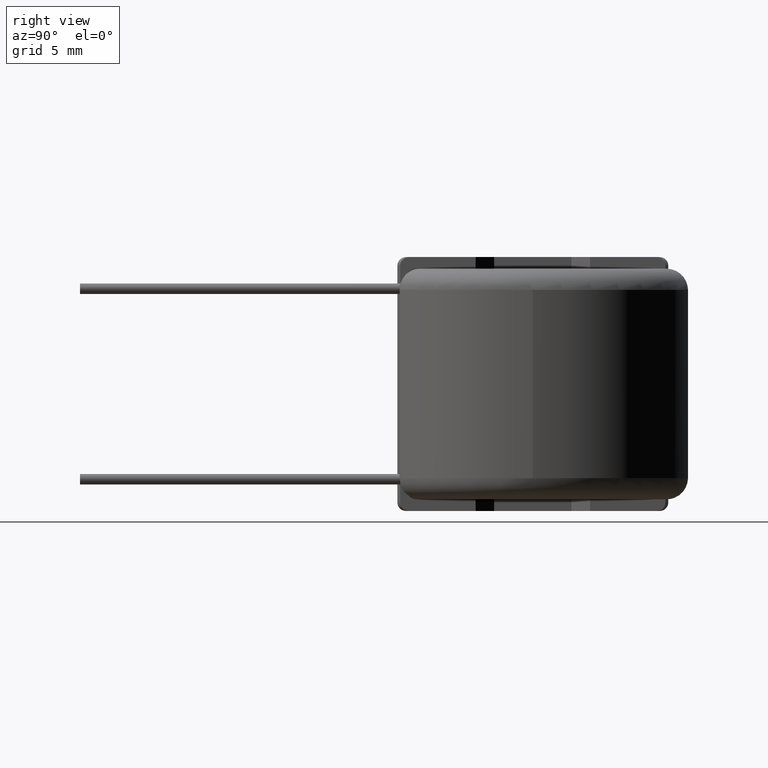
[diagram: clean part render]
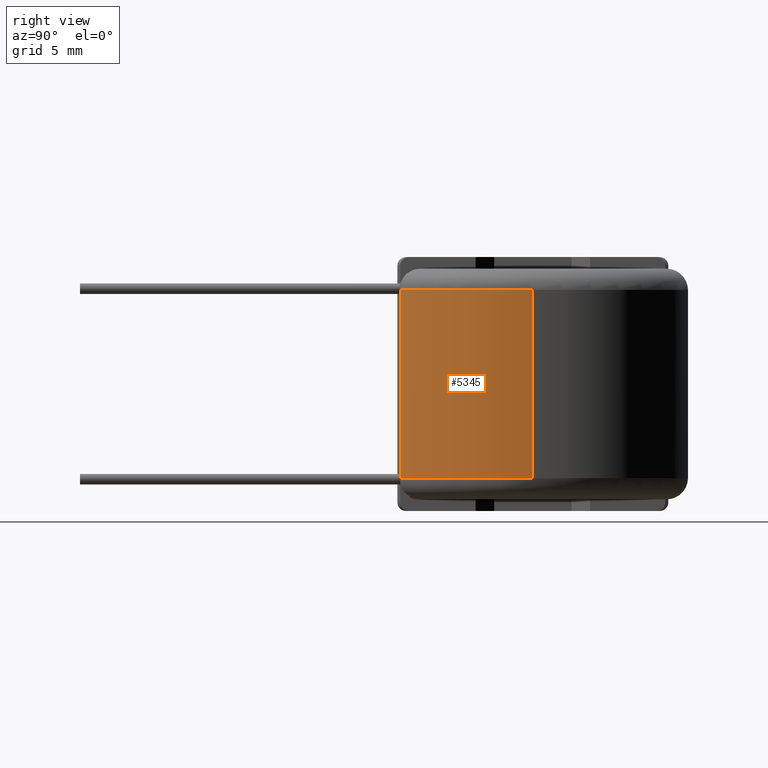
[diagram: same view with one face highlighted and labeled with its STEP entity id]
A machine part, right view. The second image highlights one B-rep face of the part: STEP entity #5345.
In plain terms, the highlighted cylindrical surface (partial cylindrical patch) has radius 7.5 mm, axis along (0, -0, -1).
Its self-contained STEP definition (entity closure, byte-faithful):
#573 = DIRECTION ( 'NONE',  ( -0.0000000000000000000, 0.0000000000000000000, 1.000000000000000000 ) ) ;
#639 = DIRECTION ( 'NONE',  ( -1.000000000000000000, 1.776356839400250465E-15, 0.0000000000000000000 ) ) ;
#683 = CARTESIAN_POINT ( 'NONE',  ( 7.500000000000000000, 0.0000000000000000000, -4.449999999999999289 ) ) ;
#908 = AXIS2_PLACEMENT_3D ( 'NONE', #8719, #3006, #7971 ) ;
#1197 = VERTEX_POINT ( 'NONE', #6506 ) ;
#1602 = EDGE_CURVE ( 'NONE', #4495, #7848, #3783, .T. ) ;
#1677 = LINE ( 'NONE', #3197, #5154 ) ;
#1930 = DIRECTION ( 'NONE',  ( -0.0000000000000000000, -0.0000000000000000000, -1.000000000000000000 ) ) ;
#2290 = VECTOR ( 'NONE', #573, 1000.000000000000000 ) ;
#2296 = DIRECTION ( 'NONE',  ( 0.0000000000000000000, 0.0000000000000000000, 1.000000000000000000 ) ) ;
#2314 = ORIENTED_EDGE ( 'NONE', *, *, #2655, .F. ) ;
#2505 = CARTESIAN_POINT ( 'NONE',  ( 4.138016431061611655, -6.255143484866203529, -4.449999999999999289 ) ) ;
#2571 = CIRCLE ( 'NONE', #7816, 7.500000000000000000 ) ;
#2655 = EDGE_CURVE ( 'NONE', #1197, #4495, #1677, .T. ) ;
#2997 = EDGE_LOOP ( 'NONE', ( #2314, #5427, #7826, #8428 ) ) ;
#3006 = DIRECTION ( 'NONE',  ( 0.0000000000000000000, -0.0000000000000000000, -1.000000000000000000 ) ) ;
#3172 = AXIS2_PLACEMENT_3D ( 'NONE', #6897, #1930, #7732 ) ;
#3197 = CARTESIAN_POINT ( 'NONE',  ( 7.500000000000000000, 0.0000000000000000000, 5.450000000000000178 ) ) ;
#3358 = FACE_OUTER_BOUND ( 'NONE', #2997, .T. ) ;
#3783 = CIRCLE ( 'NONE', #3172, 7.500000000000000000 ) ;
#4044 = CARTESIAN_POINT ( 'NONE',  ( 0.0000000000000000000, 0.0000000000000000000, 4.450000000000000178 ) ) ;
#4086 = DIRECTION ( 'NONE',  ( 0.0000000000000000000, -0.0000000000000000000, -1.000000000000000000 ) ) ;
#4495 = VERTEX_POINT ( 'NONE', #683 ) ;
#5154 = VECTOR ( 'NONE', #4086, 1000.000000000000000 ) ;
#5345 = ADVANCED_FACE ( 'NONE', ( #3358 ), #6739, .T. ) ;
#5427 = ORIENTED_EDGE ( 'NONE', *, *, #8260, .F. ) ;
#6324 = EDGE_CURVE ( 'NONE', #7848, #9529, #9907, .T. ) ;
#6506 = CARTESIAN_POINT ( 'NONE',  ( 7.500000000000000000, 0.0000000000000000000, 4.450000000000000178 ) ) ;
#6739 = CYLINDRICAL_SURFACE ( 'NONE', #908, 7.500000000000000000 ) ;
#6897 = CARTESIAN_POINT ( 'NONE',  ( 0.0000000000000000000, 0.0000000000000000000, -4.449999999999999289 ) ) ;
#7318 = CARTESIAN_POINT ( 'NONE',  ( 4.138016431061610767, -6.255143484866204417, 4.450000000000000178 ) ) ;
#7732 = DIRECTION ( 'NONE',  ( -1.000000000000000000, 0.0000000000000000000, 0.0000000000000000000 ) ) ;
#7816 = AXIS2_PLACEMENT_3D ( 'NONE', #4044, #2296, #639 ) ;
#7826 = ORIENTED_EDGE ( 'NONE', *, *, #6324, .F. ) ;
#7848 = VERTEX_POINT ( 'NONE', #2505 ) ;
#7971 = DIRECTION ( 'NONE',  ( 1.000000000000000000, 0.0000000000000000000, 0.0000000000000000000 ) ) ;
#8260 = EDGE_CURVE ( 'NONE', #9529, #1197, #2571, .T. ) ;
#8428 = ORIENTED_EDGE ( 'NONE', *, *, #1602, .F. ) ;
#8719 = CARTESIAN_POINT ( 'NONE',  ( 0.0000000000000000000, 0.0000000000000000000, 5.450000000000000178 ) ) ;
#9529 = VERTEX_POINT ( 'NONE', #7318 ) ;
#9609 = CARTESIAN_POINT ( 'NONE',  ( 4.138016431061611655, -6.255143484866203529, 5.450000000000000178 ) ) ;
#9907 = LINE ( 'NONE', #9609, #2290 ) ;